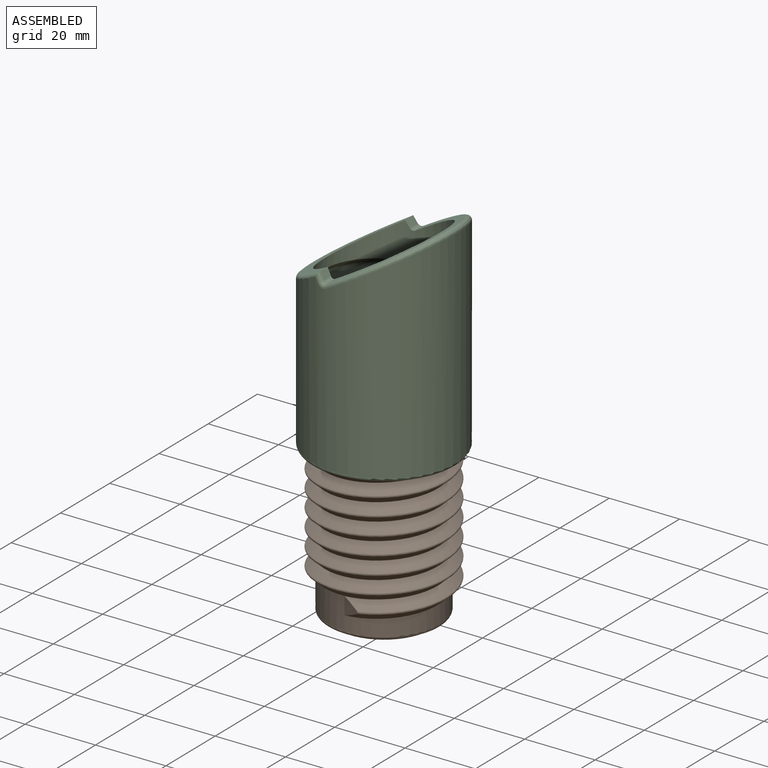
[diagram: assembled view]
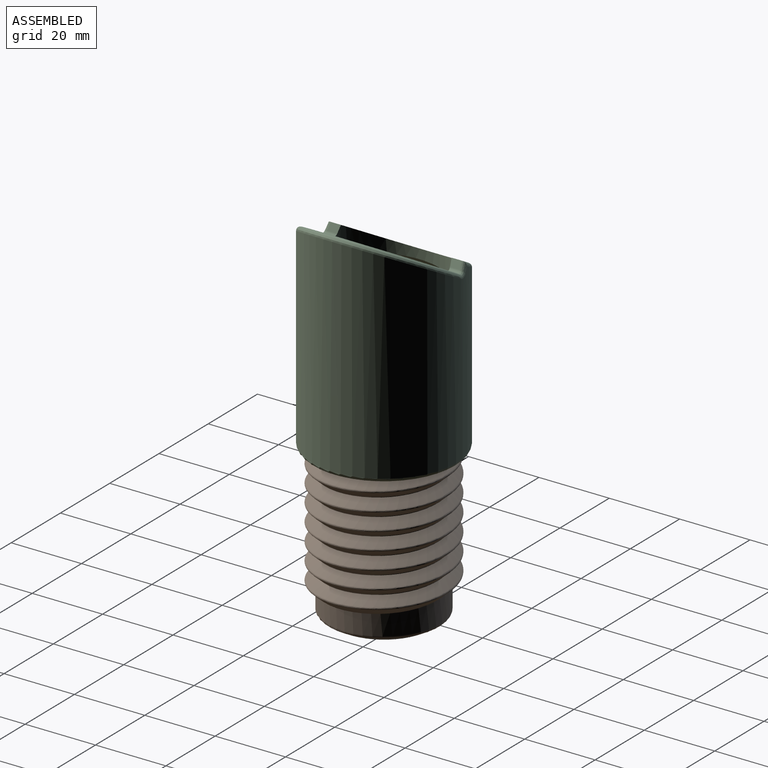
[diagram: assembled view, second angle]
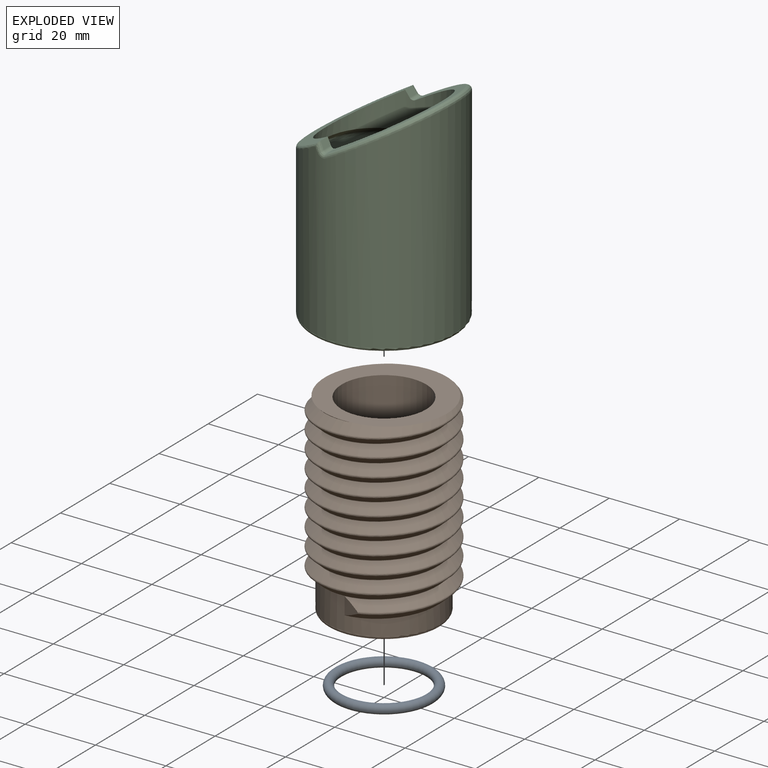
[diagram: exploded view]
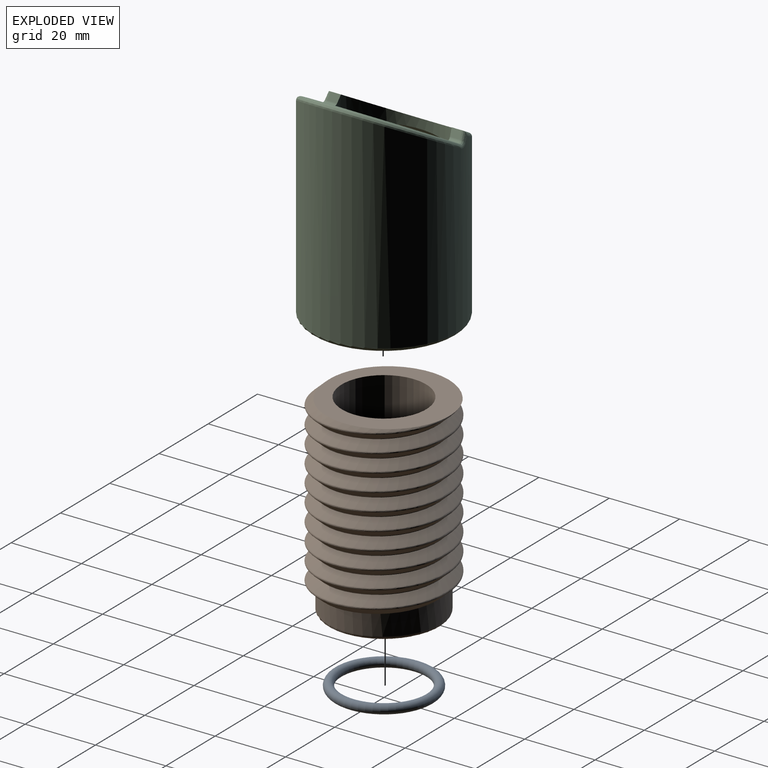
[diagram: exploded view, second angle]
ASSEMBLY  parts=3 mates=2
PART A: 1 faces, bbox 30.8x30.8x2.6 mm
  f0: torus R=12.94mm, axis (0,0,-1), area 669.2mm2
PART B: 21 faces, bbox 44.6x38.8x59.2 mm
  f0: cylinder r=12mm len=53.6mm, axis (0,0,-1), area 4041.3mm2, adj f16,f20
  f1: cylinder r=16mm len=32mm, axis (0,0,-1), area 663.5mm2, adj f2,f13,f17,f18
  f2: cylinder r=16mm len=32mm, axis (0,0,-1), area 9.9mm2, adj f1,f3,f13,f15
  f3: cylinder r=16mm len=32mm, axis (0,0,-1), area 10mm2, adj f2,f4,f13,f15
  f4: cylinder r=16mm len=32mm, axis (0,0,-1), area 10.1mm2, adj f3,f5,f13,f15
  f5: cylinder r=16mm len=32mm, axis (0,0,-1), area 10.2mm2, adj f4,f6,f13,f15
  f6: cylinder r=16mm len=32mm, axis (0,0,-1), area 10mm2, adj f5,f7,f13,f15
  f7: cylinder r=16mm len=32mm, axis (0,0,-1), area 9.9mm2, adj f6,f8,f13,f15
  f8: cylinder r=16mm len=32mm, axis (0,0,-1), area 9.9mm2, adj f7,f9,f13,f15
  f9: cylinder r=16mm len=32mm, axis (0,0,-1), area 10.2mm2, adj f8,f10,f13,f15
  f10: cylinder r=16mm len=32mm, axis (0,0,-1), area 10.1mm2, adj f9,f11,f13,f15
  f11: cylinder r=16mm len=2.13mm, axis (0,0,-1), area 0.1mm2, adj f10,f15,f16
  f12: plane 30x30mm, normal (0,0,-1), area 68.9mm2, adj f18,f19
  f13: bspline ~52.02x42.33mm, area 3250.5mm2, adj f1,f2,f3,f4,f5,f6,f7,f8
  f14: bspline ~49.08x42.89mm, area 921.6mm2, adj f13,f15,f16,f17
  f15: bspline ~49.63x42.35mm, area 3145.9mm2, adj f2,f3,f4,f5,f6,f7,f8,f9
  f16: plane 36.42x36.18mm, normal (0,0,1), area 493.5mm2, adj f0,f11,f13,f14,f15
  f17: plane 5.55x5.46mm, normal (-0.34,-0.94,0), area 15.2mm2, adj f1,f13,f14,f15
  f18: torus R=15mm, axis (0,0,1), area 154.3mm2, adj f1,f12
  f19: cylinder r=14.25mm len=28.5mm, axis (0,0,-1), area 134.3mm2, adj f12,f20
  f20: plane 28.5x28.5mm, normal (0,0,-1), area 185.6mm2, adj f0,f19
PART C: 28 faces, bbox 45.5x45.5x64.6 mm
  f0: cylinder r=20.5mm len=59.08mm, axis (0,0,-1), area 6345.9mm2, adj f20,f21,f22,f24,f25,f26,f27
  f1: cylinder r=16.5mm len=33mm, axis (0,0,-1), area 934.8mm2, adj f9,f10,f11,f13,f15,f16,f17,f18
  f2: cylinder r=16.5mm len=32.8mm, axis (0,0,-1), area 4.8mm2, adj f3,f11,f13,f14
  f3: cylinder r=16.5mm len=33mm, axis (0,0,-1), area 10.3mm2, adj f2,f4,f11,f13
  f4: cylinder r=16.5mm len=33mm, axis (0,0,-1), area 10.4mm2, adj f3,f5,f11,f13
  f5: cylinder r=16.5mm len=33mm, axis (0,0,-1), area 10.3mm2, adj f4,f6,f11,f13
  f6: cylinder r=16.5mm len=33mm, axis (0,0,-1), area 10.5mm2, adj f5,f7,f11,f13
  f7: cylinder r=16.5mm len=33mm, axis (0,0,-1), area 10.5mm2, adj f6,f8,f11,f13
  f8: cylinder r=16.5mm len=33mm, axis (0,0,-1), area 10.2mm2, adj f7,f9,f11,f13
  f9: cylinder r=16.5mm len=33mm, axis (0,0,-1), area 10.4mm2, adj f1,f8,f11,f13
  f10: plane 4.94x2.29mm, normal (0,-1,0), area 6.5mm2, adj f1,f11,f12,f13
  f11: bspline ~46.7x42.52mm, area 2467.4mm2, adj f1,f2,f3,f4,f5,f6,f7,f8
  f12: bspline ~44.83x43.63mm, area 1679mm2, adj f10,f11,f13,f14
  f13: bspline ~44.2x42.52mm, area 2297.4mm2, adj f1,f2,f3,f4,f5,f6,f7,f8
  f14: plane 40.09x40.09mm, normal (0,0,-1), area 198.4mm2, adj f2,f11,f12,f13,f27
  f15: plane 37.93x15.01mm, normal (0,0.5,0.87), area 182.6mm2, adj f1,f17,f18,f21,f24,f26
  f16: plane 39x21.53mm, normal (0,0.5,0.86), area 191.6mm2, adj f1,f19,f22,f23
  f17: plane 3.19x1.9mm, normal (0,-0.87,0.5), area 6.3mm2, adj f1,f15,f19,f21
  f18: plane 3.19x1.9mm, normal (0,-0.87,0.5), area 6.3mm2, adj f1,f15,f23,f26
  f19: cylinder r=1mm len=3.36mm, axis (1,0,0), area 4.7mm2, adj f1,f16,f17,f20
  f20: bspline ~3.42x1.77mm, area 3.7mm2, adj f0,f19,f21,f22
  f21: bspline ~12.12x7.84mm, area 3.2mm2, adj f0,f15,f17,f20,f24
  f22: bspline ~40.98x23.03mm, area 137mm2, adj f0,f16,f20,f25
  f23: cylinder r=1mm len=3.36mm, axis (1,0,0), area 4.7mm2, adj f1,f16,f18,f25
  f24: bspline ~39.86x15.7mm, area 66.9mm2, adj f0,f15,f21,f26
  f25: bspline ~3.39x1.8mm, area 3.7mm2, adj f0,f22,f23,f26
  f26: bspline ~12.12x7.84mm, area 3.2mm2, adj f0,f15,f18,f24,f25
  f27: torus R=19.5mm, axis (0,0,1), area 198.7mm2, adj f0,f14
PLACE A rot(axis=(0,0,-1),60.2deg) t=(0,0,-0.81)mm
PLACE B t=(0,0,-1)mm
PLACE C rot(axis=(0,0,1),90deg) t=(0,0,36.6)mm
MATE cylindrical C.f1 <-> B.f0  axis (0,0,-1) through (0,0,71.5)mm
MATE cylindrical B.f0 <-> A.f0  axis (0,0,-1) through (0,0,27.3)mm
